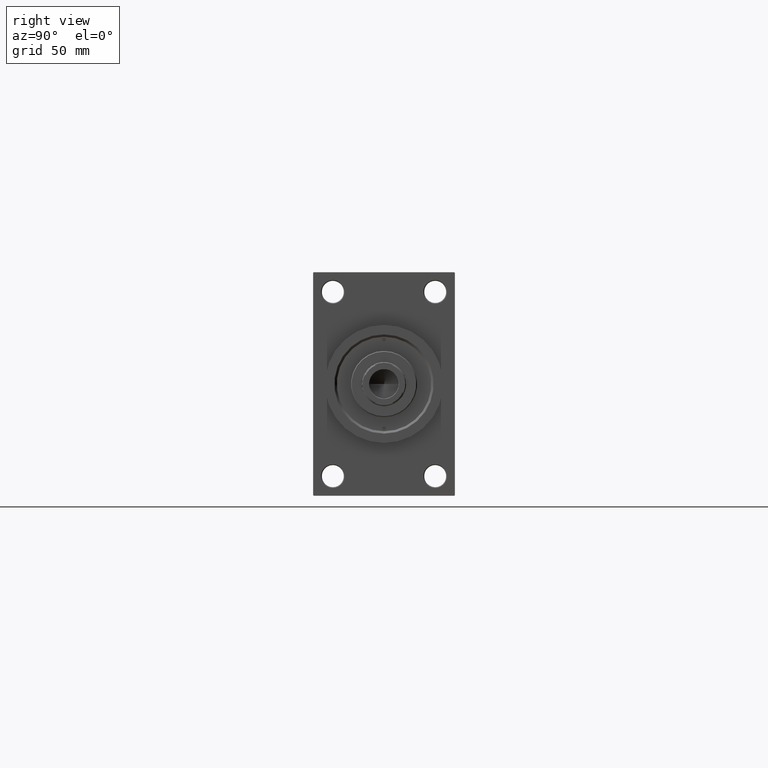
[diagram: clean part render]
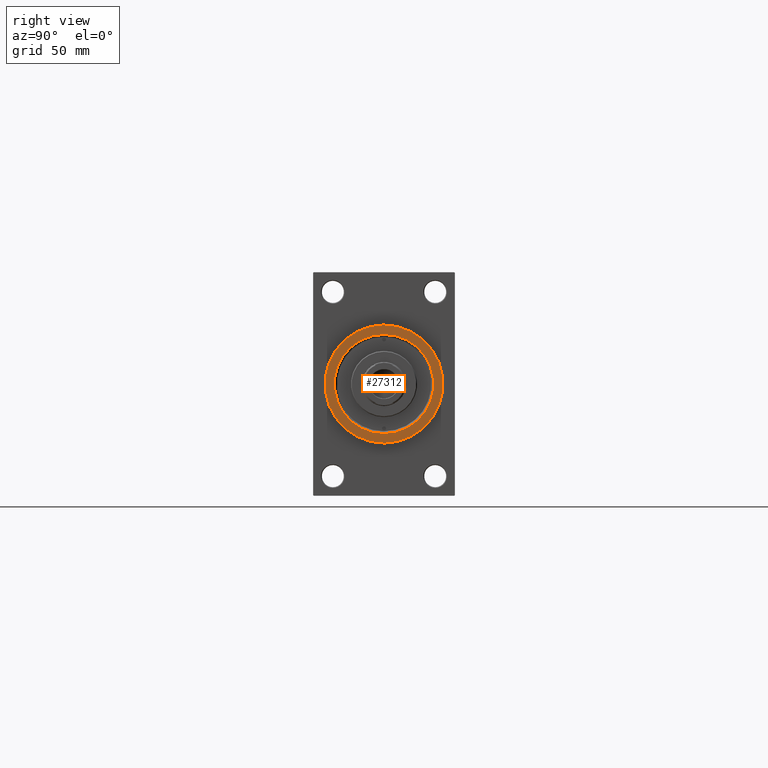
[diagram: same view with one face highlighted and labeled with its STEP entity id]
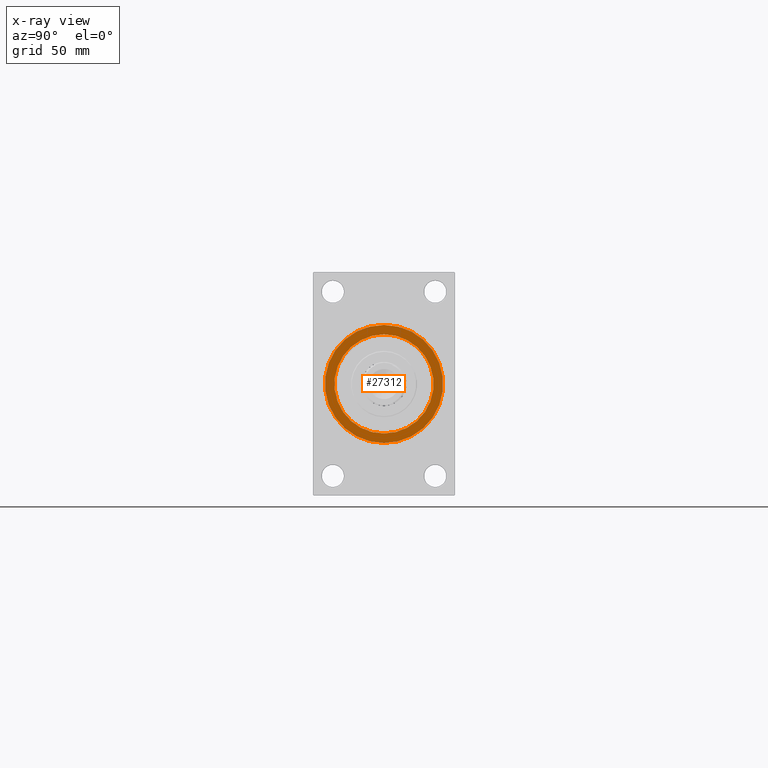
[diagram: x-ray of the same camera — body ghosted, the highlighted face saturated]
A machine part, right view. The second image highlights one B-rep face of the part: STEP entity #27312.
The next image is the same camera in x-ray: the body ghosted, the highlighted face saturated — about 0% of this face is hidden behind the body in this view.
In plain terms, the highlighted planar face has unit normal (1, 0, 0).
Its self-contained STEP definition (entity closure, byte-faithful):
#1423 = VERTEX_POINT ( 'NONE', #42072 ) ;
#5476 = DIRECTION ( 'NONE',  ( 0.000000000000000000, 0.000000000000000000, -1.000000000000000000 ) ) ;
#7854 = EDGE_CURVE ( 'NONE', #1423, #44682, #8010, .T. ) ;
#7997 = DIRECTION ( 'NONE',  ( 0.000000000000000000, 0.000000000000000000, -1.000000000000000000 ) ) ;
#8010 = CIRCLE ( 'NONE', #41707, 31.50000000000008527 ) ;
#8835 = DIRECTION ( 'NONE',  ( 1.000000000000000000, 0.000000000000000000, 0.000000000000000000 ) ) ;
#9073 = CIRCLE ( 'NONE', #28208, 37.50000000000000711 ) ;
#9205 = DIRECTION ( 'NONE',  ( -1.000000000000000000, -0.000000000000000000, -0.000000000000000000 ) ) ;
#10094 = EDGE_LOOP ( 'NONE', ( #20223, #17165 ) ) ;
#10539 = DIRECTION ( 'NONE',  ( 0.000000000000000000, 0.000000000000000000, -1.000000000000000000 ) ) ;
#13239 = CARTESIAN_POINT ( 'NONE',  ( 385.9999999999999432, 3.857637417314172944E-15, 31.50000000000008527 ) ) ;
#16768 = EDGE_LOOP ( 'NONE', ( #30542, #24446 ) ) ;
#17103 = DIRECTION ( 'NONE',  ( 0.000000000000000000, 0.000000000000000000, -1.000000000000000000 ) ) ;
#17165 = ORIENTED_EDGE ( 'NONE', *, *, #30228, .T. ) ;
#17390 = EDGE_CURVE ( 'NONE', #38077, #30416, #9073, .T. ) ;
#18319 = CARTESIAN_POINT ( 'NONE',  ( 385.9999999999999432, 0.000000000000000000, 37.50000000000000711 ) ) ;
#20223 = ORIENTED_EDGE ( 'NONE', *, *, #7854, .T. ) ;
#20443 = DIRECTION ( 'NONE',  ( 1.000000000000000000, 0.000000000000000000, 0.000000000000000000 ) ) ;
#22866 = CARTESIAN_POINT ( 'NONE',  ( 385.9999999999999432, 0.000000000000000000, 0.000000000000000000 ) ) ;
#24446 = ORIENTED_EDGE ( 'NONE', *, *, #26343, .T. ) ;
#25371 = CIRCLE ( 'NONE', #45229, 37.50000000000000711 ) ;
#26245 = CIRCLE ( 'NONE', #44606, 31.50000000000008527 ) ;
#26343 = EDGE_CURVE ( 'NONE', #30416, #38077, #25371, .T. ) ;
#27312 = ADVANCED_FACE ( 'NONE', ( #42139, #41901 ), #38312, .T. ) ;
#28208 = AXIS2_PLACEMENT_3D ( 'NONE', #45844, #20443, #17103 ) ;
#30228 = EDGE_CURVE ( 'NONE', #44682, #1423, #26245, .T. ) ;
#30416 = VERTEX_POINT ( 'NONE', #41868 ) ;
#30542 = ORIENTED_EDGE ( 'NONE', *, *, #17390, .T. ) ;
#33894 = DIRECTION ( 'NONE',  ( 0.000000000000000000, 0.000000000000000000, -1.000000000000000000 ) ) ;
#36622 = CARTESIAN_POINT ( 'NONE',  ( 385.9999999999999432, 0.000000000000000000, 0.000000000000000000 ) ) ;
#38077 = VERTEX_POINT ( 'NONE', #18319 ) ;
#38312 = PLANE ( 'NONE',  #43775 ) ;
#41707 = AXIS2_PLACEMENT_3D ( 'NONE', #44927, #9205, #33894 ) ;
#41868 = CARTESIAN_POINT ( 'NONE',  ( 385.9999999999999432, 4.592425496802575156E-15, -37.50000000000000711 ) ) ;
#41901 = FACE_OUTER_BOUND ( 'NONE', #16768, .T. ) ;
#42072 = CARTESIAN_POINT ( 'NONE',  ( 385.9999999999999432, 0.000000000000000000, -31.50000000000008527 ) ) ;
#42139 = FACE_BOUND ( 'NONE', #10094, .T. ) ;
#43353 = DIRECTION ( 'NONE',  ( -1.000000000000000000, -0.000000000000000000, -0.000000000000000000 ) ) ;
#43775 = AXIS2_PLACEMENT_3D ( 'NONE', #45499, #8835, #5476 ) ;
#44606 = AXIS2_PLACEMENT_3D ( 'NONE', #36622, #43353, #10539 ) ;
#44682 = VERTEX_POINT ( 'NONE', #13239 ) ;
#44906 = DIRECTION ( 'NONE',  ( 1.000000000000000000, 0.000000000000000000, 0.000000000000000000 ) ) ;
#44927 = CARTESIAN_POINT ( 'NONE',  ( 385.9999999999999432, 0.000000000000000000, 0.000000000000000000 ) ) ;
#45229 = AXIS2_PLACEMENT_3D ( 'NONE', #22866, #44906, #7997 ) ;
#45499 = CARTESIAN_POINT ( 'NONE',  ( 385.9999999999999432, 0.000000000000000000, 0.000000000000000000 ) ) ;
#45844 = CARTESIAN_POINT ( 'NONE',  ( 385.9999999999999432, 0.000000000000000000, 0.000000000000000000 ) ) ;